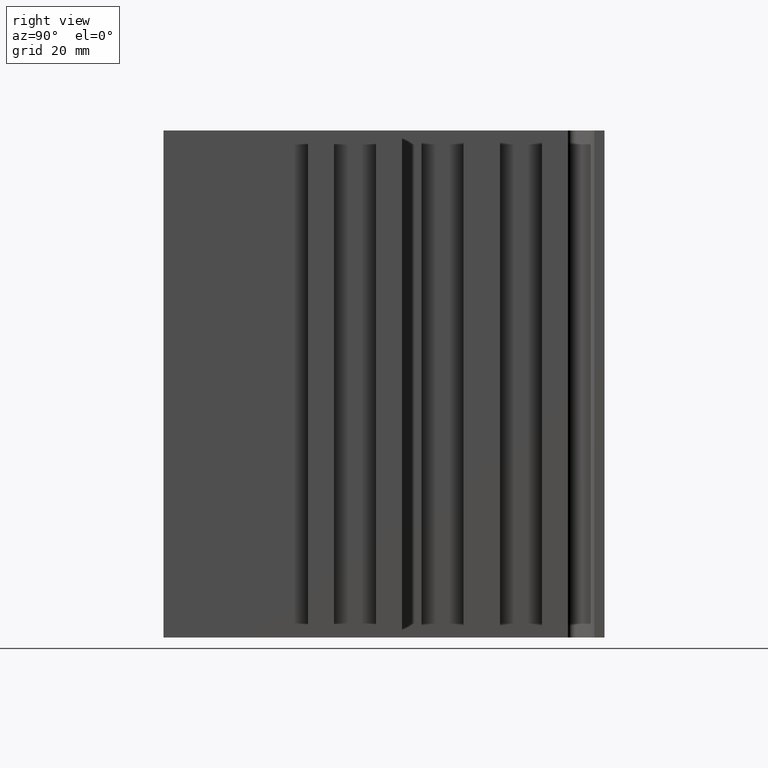
[diagram: clean part render]
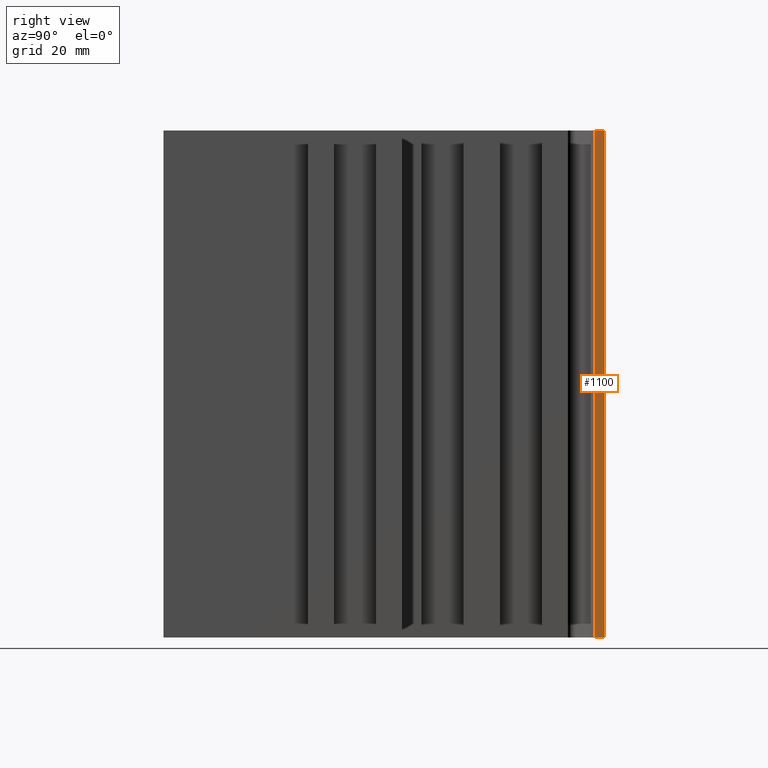
[diagram: same view with one face highlighted and labeled with its STEP entity id]
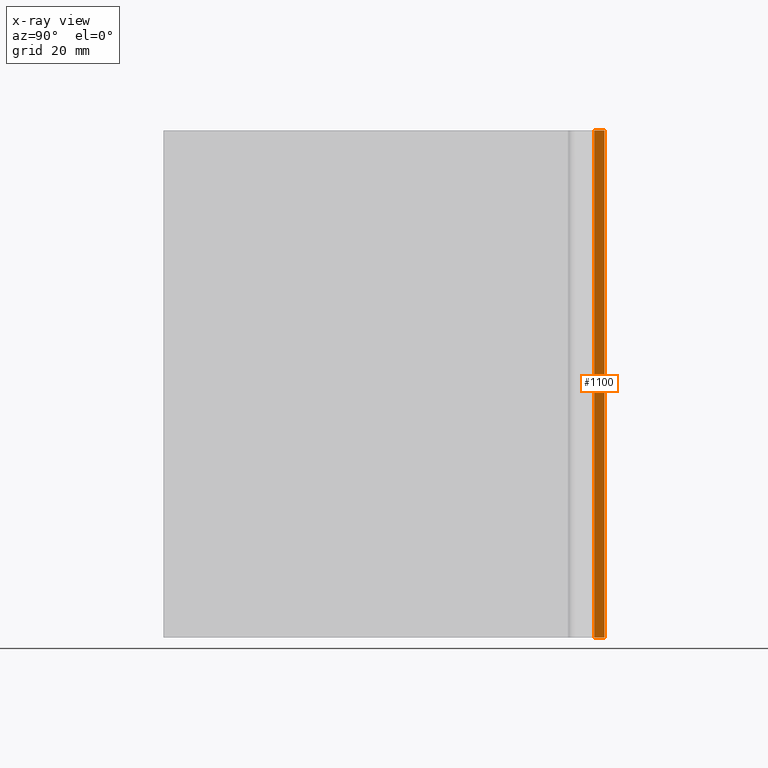
[diagram: x-ray of the same camera — body ghosted, the highlighted face saturated]
A machine part, right view. The second image highlights one B-rep face of the part: STEP entity #1100.
The next image is the same camera in x-ray: the body ghosted, the highlighted face saturated — about 0% of this face is hidden behind the body in this view.
In plain terms, the highlighted planar face has unit normal (1, 0, 0).
Its self-contained STEP definition (entity closure, byte-faithful):
#84=FACE_OUTER_BOUND('',#139,.T.);
#139=EDGE_LOOP('',(#854,#855,#856,#857));
#260=LINE('',#1721,#399);
#261=LINE('',#1724,#400);
#262=LINE('',#1726,#401);
#263=LINE('',#1727,#402);
#399=VECTOR('',#1402,100.);
#400=VECTOR('',#1405,1.99999999999999);
#401=VECTOR('',#1406,1.99999999999999);
#402=VECTOR('',#1407,100.);
#511=VERTEX_POINT('',#1717);
#512=VERTEX_POINT('',#1719);
#513=VERTEX_POINT('',#1723);
#514=VERTEX_POINT('',#1725);
#656=EDGE_CURVE('',#511,#512,#260,.T.);
#657=EDGE_CURVE('',#513,#511,#261,.T.);
#658=EDGE_CURVE('',#514,#512,#262,.T.);
#659=EDGE_CURVE('',#513,#514,#263,.T.);
#854=ORIENTED_EDGE('',*,*,#657,.T.);
#855=ORIENTED_EDGE('',*,*,#656,.T.);
#856=ORIENTED_EDGE('',*,*,#658,.F.);
#857=ORIENTED_EDGE('',*,*,#659,.F.);
#1049=PLANE('',#1169);
#1100=ADVANCED_FACE('',(#84),#1049,.T.);
#1169=AXIS2_PLACEMENT_3D('',#1722,#1403,#1404);
#1402=DIRECTION('',(0.,0.,1.));
#1403=DIRECTION('center_axis',(1.,5.32907051820077E-14,0.));
#1404=DIRECTION('ref_axis',(-5.32907051820075E-14,1.,0.));
#1405=DIRECTION('',(-5.32907051820077E-14,1.,0.));
#1406=DIRECTION('',(-5.32907051820077E-14,1.,0.));
#1407=DIRECTION('',(0.,0.,1.));
#1717=CARTESIAN_POINT('',(-8.50000000000164,42.,0.));
#1719=CARTESIAN_POINT('',(-8.50000000000164,42.,100.));
#1721=CARTESIAN_POINT('',(-8.50000000000164,42.,0.));
#1722=CARTESIAN_POINT('Origin',(-8.50000000000153,40.,0.));
#1723=CARTESIAN_POINT('',(-8.50000000000153,40.,0.));
#1724=CARTESIAN_POINT('',(-8.50000000000153,40.,0.));
#1725=CARTESIAN_POINT('',(-8.50000000000153,40.,100.));
#1726=CARTESIAN_POINT('',(-8.50000000000153,40.,100.));
#1727=CARTESIAN_POINT('',(-8.50000000000153,40.,0.));